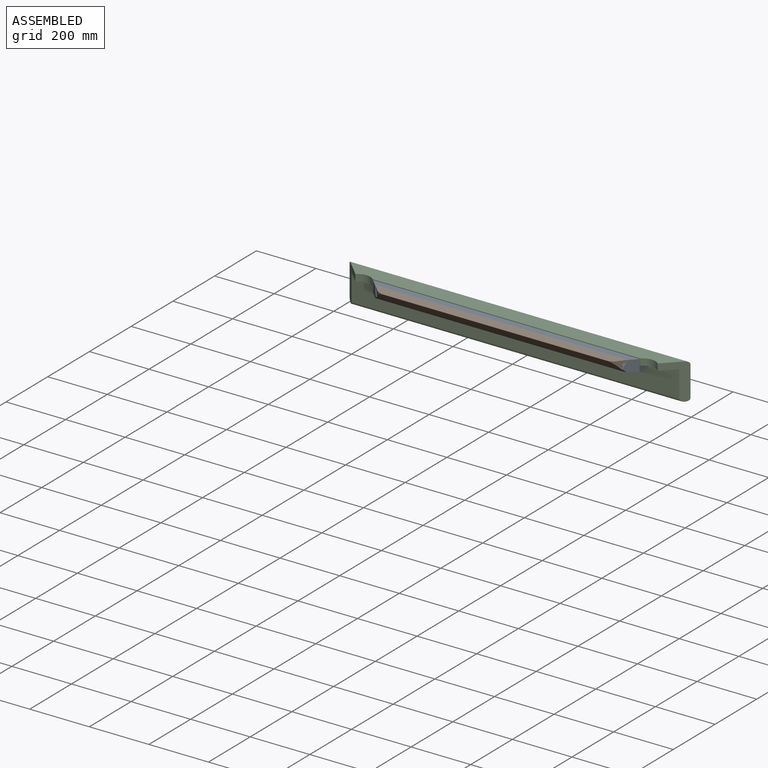
[diagram: assembled view]
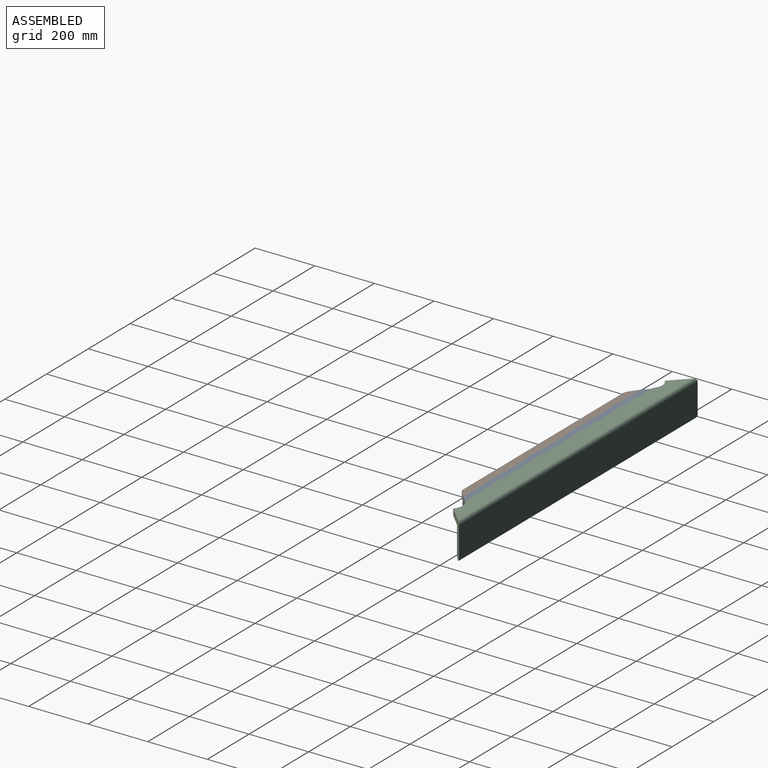
[diagram: assembled view, second angle]
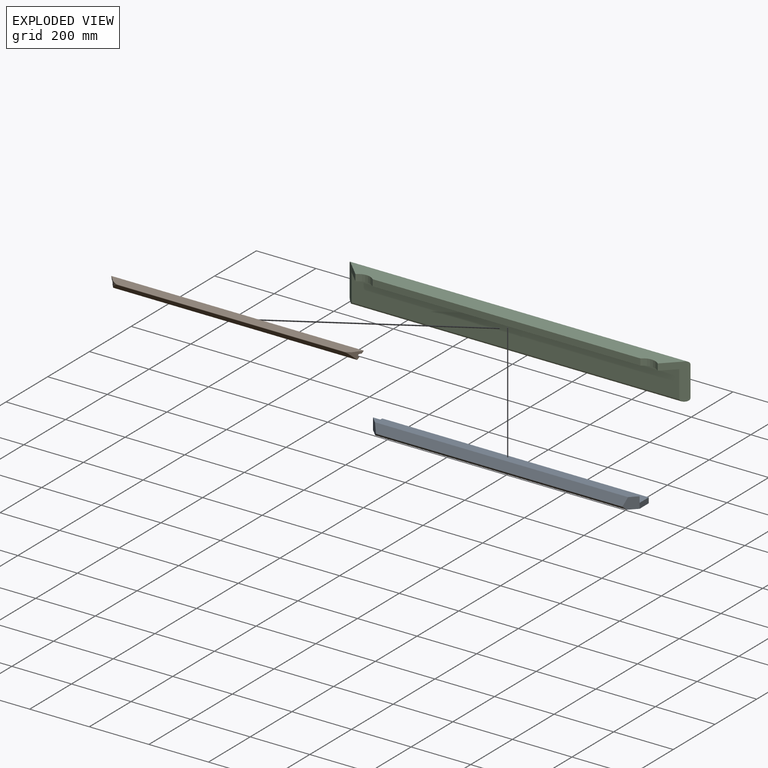
[diagram: exploded view]
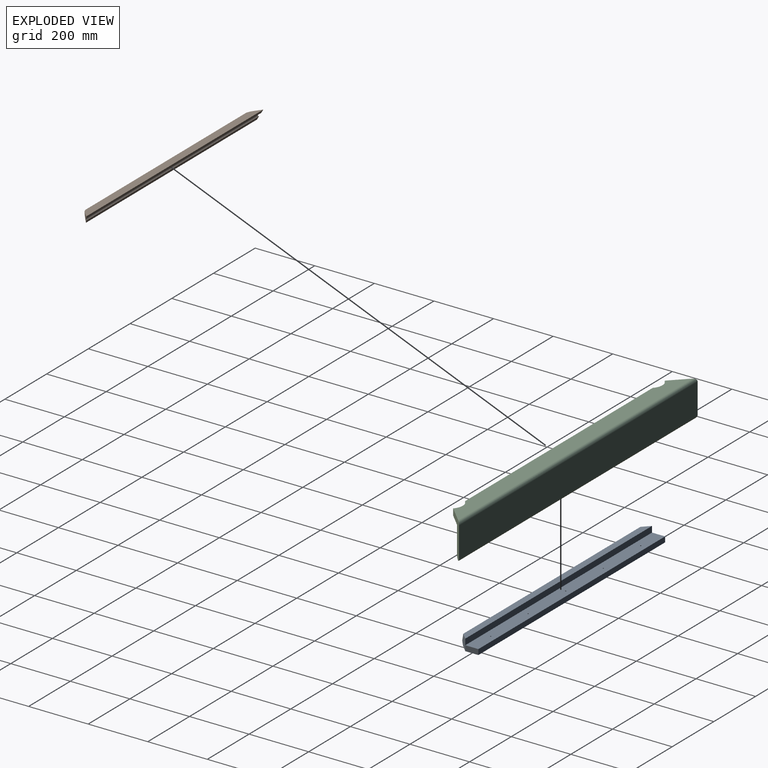
[diagram: exploded view, second angle]
ASSEMBLY  parts=3 mates=2
PART A: 31 faces, bbox 895x78x38 mm
  f0: plane 38x34mm, normal (-0.71,-0.71,0), area 1544.6mm2, adj f2,f3,f4,f7,f9,f10
  f1: plane 38x34mm, normal (0.71,-0.71,0), area 1544.6mm2, adj f2,f3,f4,f6,f9,f10
  f2: plane 895x69.45mm, normal (0,0,-1), area 60946.1mm2, adj f0,f1,f6,f7,f8,f10,f12,f14
  f3: plane 895x22.76mm, normal (0,0,1), area 19853.7mm2, adj f0,f1,f4,f9
  f4: plane 895x20mm, normal (0,1,0), area 17900mm2, adj f0,f1,f3,f5
  f5: plane 895x44mm, normal (0,0,1), area 39331.7mm2, adj f4,f6,f7,f8,f11,f13,f15,f17
  f6: plane 44x18mm, normal (1,0,0), area 792mm2, adj f1,f2,f5,f8
  f7: plane 44x18mm, normal (-1,0,0), area 792mm2, adj f0,f2,f5,f8
  f8: plane 895x18mm, normal (0,1,0), area 16110mm2, adj f2,f5,f6,f7
  f9: plane 849.48x27.82mm, normal (0,-0.93,0.37), area 25147.1mm2, adj f0,f1,f3,f10
  f10: plane 844.09x10.18mm, normal (0,-0.77,-0.64), area 11108.5mm2, adj f0,f1,f2,f9
  f11: cone r=0mm half-angle=59deg, axis (0,0,-1), area 54.9mm2, adj f5,f12
  f12: cylinder r=4.25mm len=16.5mm, axis (0,0,-1), area 440.6mm2, adj f2,f11
  f13: cone r=0mm half-angle=59deg, axis (0,0,-1), area 54.9mm2, adj f5,f14
  f14: cylinder r=4.25mm len=16.5mm, axis (0,0,-1), area 440.6mm2, adj f2,f13
  f15: cone r=0mm half-angle=59deg, axis (0,0,-1), area 54.9mm2, adj f5,f16
  f16: cylinder r=4.25mm len=16.5mm, axis (0,0,-1), area 440.6mm2, adj f2,f15
  f17: cone r=0mm half-angle=59deg, axis (0,0,-1), area 54.9mm2, adj f5,f18
  f18: cylinder r=4.25mm len=16.5mm, axis (0,0,-1), area 440.6mm2, adj f2,f17
  f19: cone r=0mm half-angle=59deg, axis (0,0,-1), area 54.9mm2, adj f5,f20
  f20: cylinder r=4.25mm len=16.5mm, axis (0,0,-1), area 440.6mm2, adj f2,f19
  f21: cone r=0mm half-angle=59deg, axis (0,0,-1), area 66.2mm2, adj f22
  f22: cylinder r=4.25mm len=16.5mm, axis (0,0,-1), area 440.6mm2, adj f2,f21
  f23: cone r=0mm half-angle=59deg, axis (0,0,-1), area 66.2mm2, adj f24
  f24: cylinder r=4.25mm len=16.5mm, axis (0,0,-1), area 440.6mm2, adj f2,f23
  f25: cone r=0mm half-angle=59deg, axis (0,0,-1), area 66.2mm2, adj f26
  f26: cylinder r=4.25mm len=16.5mm, axis (0,0,-1), area 440.6mm2, adj f2,f25
  f27: cone r=0mm half-angle=59deg, axis (0,0,-1), area 66.2mm2, adj f28
  f28: cylinder r=4.25mm len=16.5mm, axis (0,0,-1), area 440.6mm2, adj f2,f27
  f29: cone r=0mm half-angle=59deg, axis (0,0,-1), area 66.2mm2, adj f30
  f30: cylinder r=4.25mm len=16.5mm, axis (0,0,-1), area 440.6mm2, adj f2,f29
PART B: 10 faces, bbox 847.7x27.7x31.1 mm
  f0: plane 847.7x10mm, normal (0,1,0), area 8430.4mm2, adj f3,f4,f6,f8
  f1: plane 819.75x26.82mm, normal (0,-0.47,-0.88), area 24224.4mm2, adj f2,f4,f5,f6,f7,f9
  f2: plane 829.07x10mm, normal (0,1,0), area 8244.1mm2, adj f1,f4,f6,f8
  f3: plane 847.7x26.82mm, normal (0,-0.47,0.88), area 24729.7mm2, adj f0,f4,f5,f6,f7,f9
  f4: plane 30x19.38mm, normal (-0.71,-0.63,-0.33), area 379.6mm2, adj f0,f1,f2,f3,f5,f8
  f5: cylinder r=43.8mm len=22.14mm, axis (0,-0.47,0.88), area 213.8mm2, adj f1,f3,f4,f9
  f6: plane 30x19.38mm, normal (0.71,-0.63,-0.33), area 379.6mm2, adj f0,f1,f2,f3,f7,f8
  f7: cylinder r=43.8mm len=22.14mm, axis (0,-0.47,0.88), area 213.8mm2, adj f1,f3,f6,f9
  f8: cylinder r=5mm len=838.38mm, axis (1,0,0), area 13007.6mm2, adj f0,f2,f4,f6
  f9: cylinder r=1mm len=772.52mm, axis (-1,0,0), area 1666.5mm2, adj f1,f3,f5,f7
PART C: 23 faces, bbox 1144x65x122 mm
  f0: plane 1100x43mm, normal (0,0,-1), area 44197.3mm2, adj f1,f2,f4,f6,f9,f11,f13,f15
  f1: plane 899.06x22mm, normal (0,-1,0), area 19779.2mm2, adj f0,f5,f21,f22
  f2: plane 122x64.76mm, normal (0.71,-0.71,0), area 5035.2mm2, adj f0,f3,f5,f6,f7,f18,f19,f20
  f3: plane 1144x102mm, normal (0,1,0), area 116688mm2, adj f2,f4,f19,f20
  f4: plane 122x64.76mm, normal (-0.71,-0.71,0), area 5035.2mm2, adj f0,f3,f5,f6,f7,f18,f19,f20
  f5: plane 1124x55mm, normal (0,0,1), area 57825mm2, adj f1,f2,f4,f20,f21,f22
  f6: plane 1100x90mm, normal (0,-1,0), area 99000mm2, adj f0,f2,f4,f18
  f7: plane 1124x2mm, normal (0,0,-1), area 2244mm2, adj f2,f4,f18,f19
  f8: cone r=0mm half-angle=59deg, axis (0,0,-1), area 66.2mm2, adj f9
  f9: cylinder r=4.25mm len=16.5mm, axis (0,0,-1), area 440.6mm2, adj f0,f8
  f10: cone r=0mm half-angle=59deg, axis (0,0,-1), area 66.2mm2, adj f11
  f11: cylinder r=4.25mm len=16.5mm, axis (0,0,-1), area 440.6mm2, adj f0,f10
  f12: cone r=0mm half-angle=59deg, axis (0,0,-1), area 66.2mm2, adj f13
  f13: cylinder r=4.25mm len=16.5mm, axis (0,0,-1), area 440.6mm2, adj f0,f12
  f14: cone r=0mm half-angle=59deg, axis (0,0,-1), area 66.2mm2, adj f15
  f15: cylinder r=4.25mm len=16.5mm, axis (0,0,-1), area 440.6mm2, adj f0,f14
  f16: cone r=0mm half-angle=59deg, axis (0,0,-1), area 66.2mm2, adj f17
  f17: cylinder r=4.25mm len=16.5mm, axis (0,0,-1), area 440.6mm2, adj f0,f16
  f18: cylinder r=10mm len=1120mm, axis (1,0,0), area 17392.9mm2, adj f2,f4,f6,f7
  f19: cylinder r=10mm len=1144mm, axis (1,0,0), area 17855.8mm2, adj f2,f3,f4,f7
  f20: cylinder r=10mm len=1144mm, axis (1,0,0), area 17855.8mm2, adj f2,f3,f4,f5
  f21: cylinder r=40.64mm len=57.71mm, axis (0,0,1), area 1411.8mm2, adj f0,f1,f4,f5
  f22: cylinder r=40.64mm len=57.71mm, axis (0,0,1), area 1411.8mm2, adj f0,f1,f2,f5
PLACE A t=(0,-35,-18)mm
PLACE B rot(axis=(-1,0,0),22deg) t=(0,-35,-7.82)mm
PLACE C at identity fixed
MATE fastened A.f8 <-> C.f6  axis (0,1,0) through (0,43,0)mm
MATE fastened B.f0 <-> A.f9  axis (0,0.93,-0.37) through (0,-23.76,20)mm
